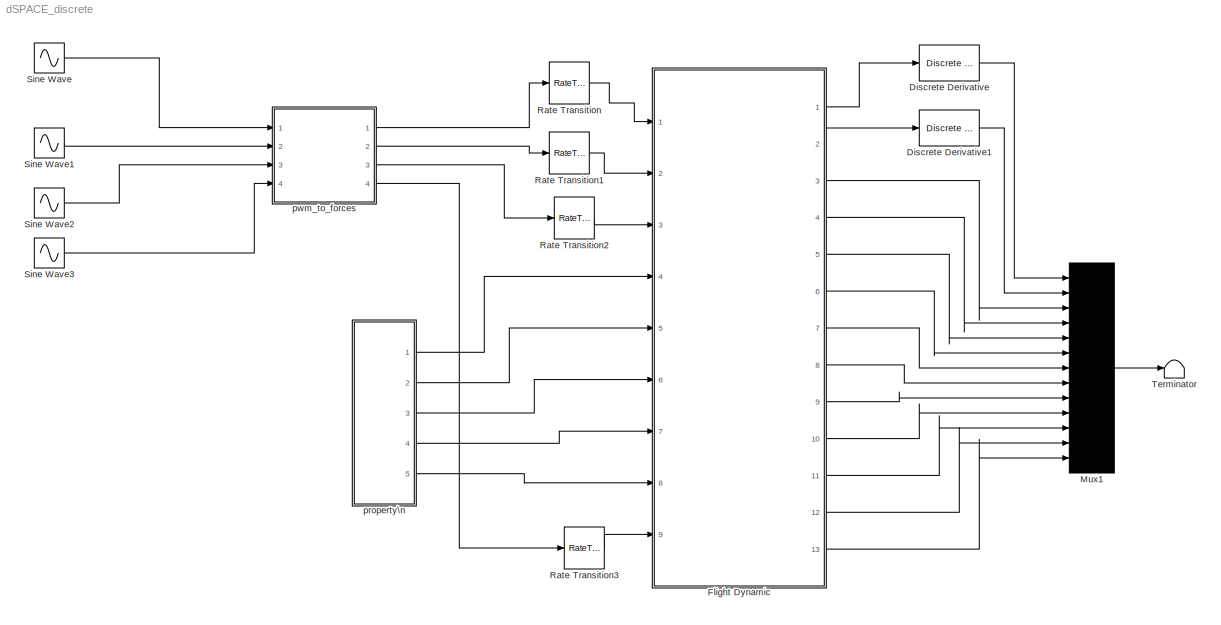
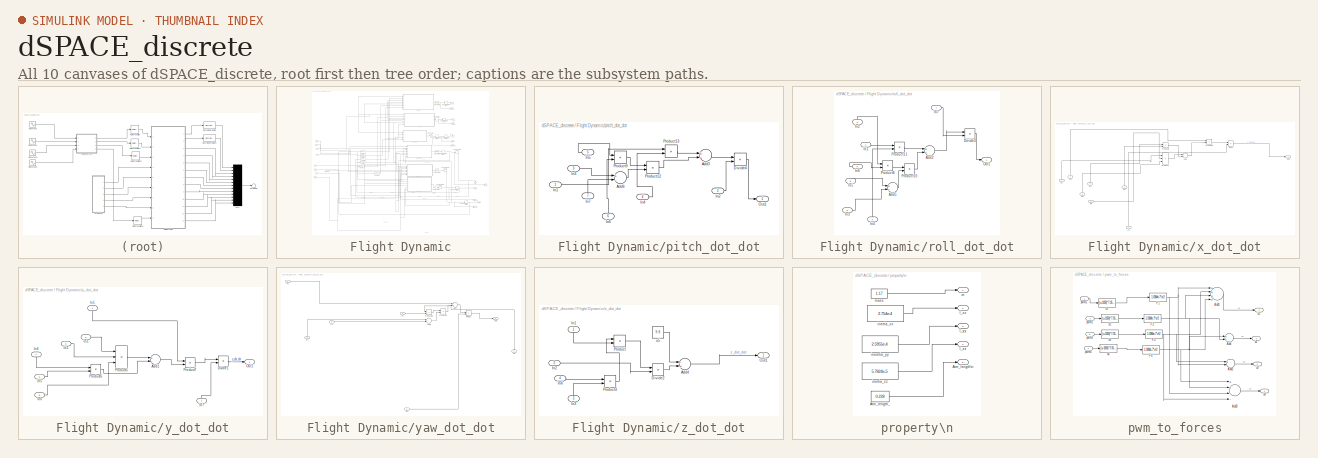
[diagram: thumbnail index - all 10 canvases of the model, root first then tree order]
MODEL dSPACE_discrete
KIND model
BLOCK [Reference] Discrete Derivative  REF=simulink/Discrete/Discrete Derivative
  DoSatur = off
  FunctionWithSeparateData = off
  ICPrevScaledInput = 0.0
  LockScale = off
  OutDataType = sfix(16)
  OutDataTypeStr = Inherit: Inherit via internal rule
  OutMax = []
  OutMin = []
  OutScaling = 2^-10
  OutputDataTypeScalingMode = Inherit via internal rule
  Ports = [1, 1]
  RTWMemSecDataConstants = Inherit from model
  RTWMemSecDataInternal = Inherit from model
  RTWMemSecDataParameters = Inherit from model
  RTWMemSecFuncExecute = Inherit from model
  RTWMemSecFuncInitTerm = Inherit from model
  RndMeth = Floor
  ShowPortLabels = FromPortIcon
  SourceBlock = simulink/Discrete/Discrete Derivative
  SourceType = Discrete Derivative
  SystemSampleTime = -1
  gainval = 1.0
BLOCK [Reference] Discrete Derivative1  REF=simulink/Discrete/Discrete Derivative
  DoSatur = off
  FunctionWithSeparateData = off
  ICPrevScaledInput = 0.0
  LockScale = off
  OutDataType = sfix(16)
  OutDataTypeStr = Inherit: Inherit via internal rule
  OutMax = []
  OutMin = []
  OutScaling = 2^-10
  OutputDataTypeScalingMode = Inherit via internal rule
  Ports = [1, 1]
  RTWMemSecDataConstants = Inherit from model
  RTWMemSecDataInternal = Inherit from model
  RTWMemSecDataParameters = Inherit from model
  RTWMemSecFuncExecute = Inherit from model
  RTWMemSecFuncInitTerm = Inherit from model
  RndMeth = Floor
  ShowPortLabels = FromPortIcon
  SourceBlock = simulink/Discrete/Discrete Derivative
  SourceType = Discrete Derivative
  SystemSampleTime = -1
  gainval = 1.0
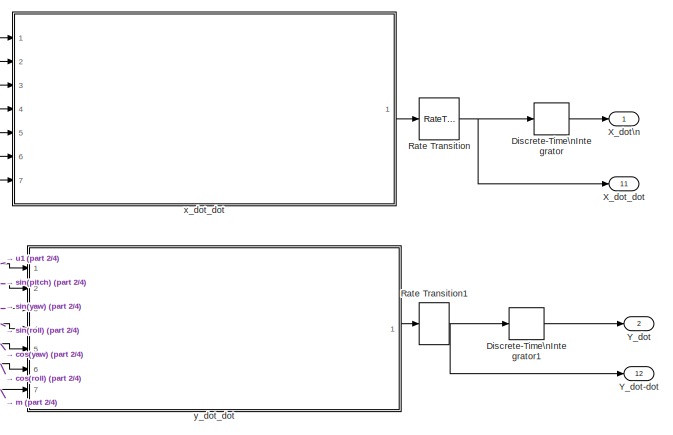
[diagram: Flight Dynamic - part 1/4, top center region]
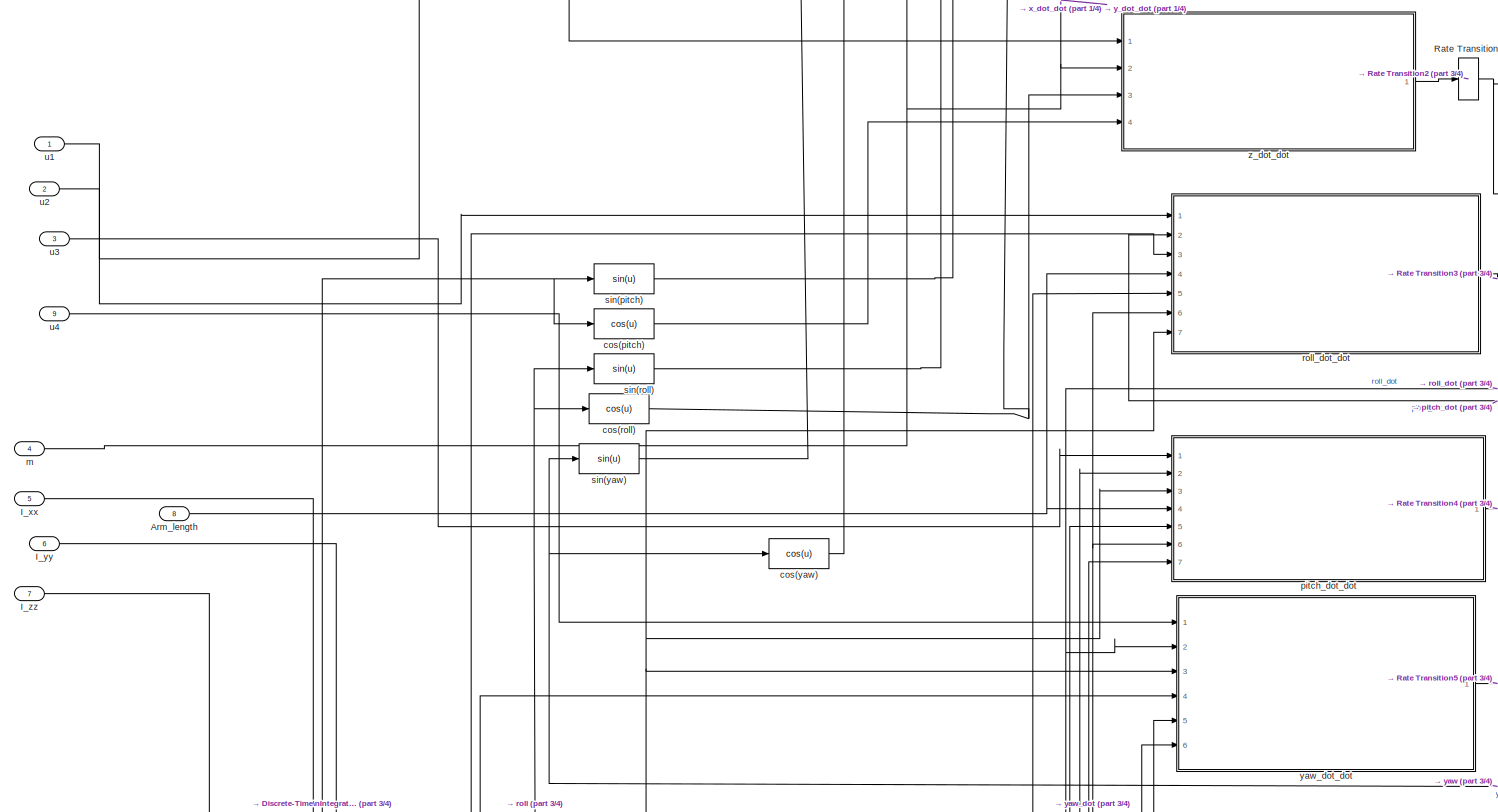
[diagram: Flight Dynamic - part 2/4, central region]
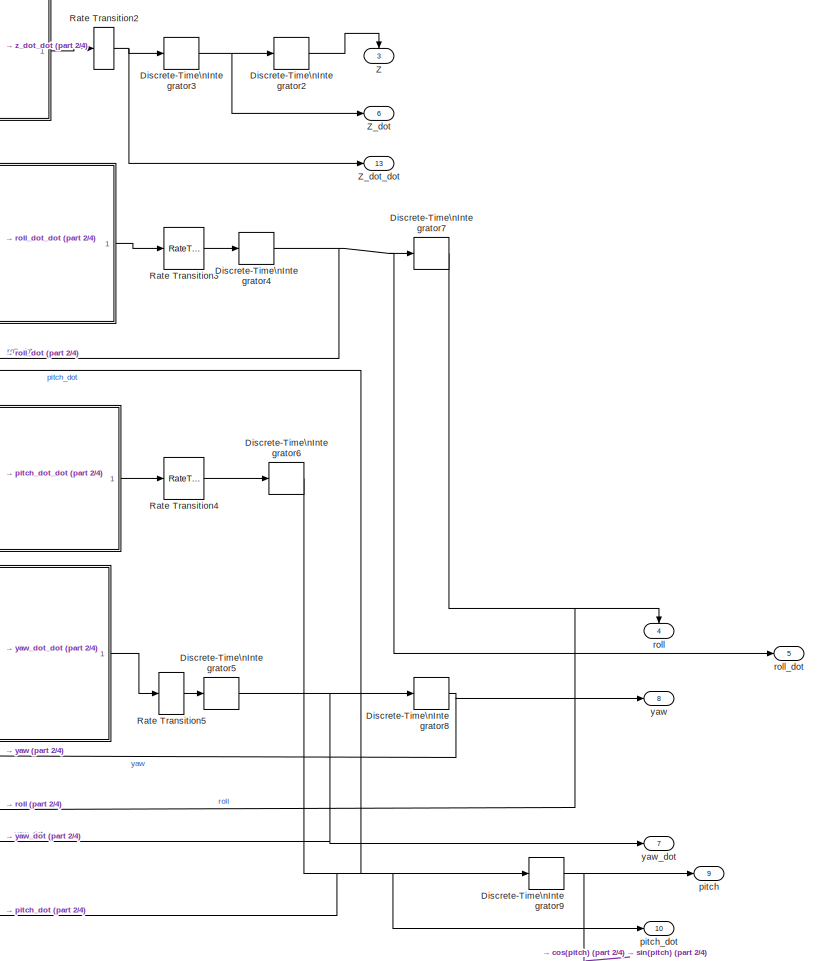
[diagram: Flight Dynamic - part 3/4, middle right region]
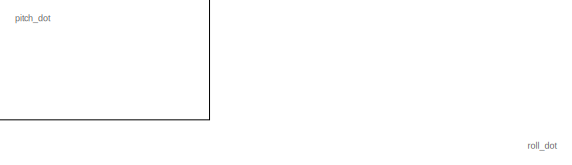
[diagram: Flight Dynamic - part 4/4, bottom center region]
BLOCK [SubSystem] Flight Dynamic
  FunctionWithSeparateData = off
  MaskHideContents = off
  MinAlgLoopOccurrences = off
  Opaque = off
  Ports = [9, 13]
  PropExecContextOutsideSubsystem = off
  RTWSystemCode = Auto
  RequestExecContextInheritance = off
BLOCK [Inport] Flight Dynamic/Arm_length
  IconDisplay = Port number
  OutDataType = sfix(16)
  OutScaling = 2^0
  Port = 8
BLOCK [DiscreteIntegrator] Flight Dynamic/Discrete-Time\nIntegrator
  ExternalReset = none
  ICPrevOutput = DiscIntNeverNeededParam
  ICPrevScaledInput = DiscIntNeverNeededParam
  InitialConditionSource = internal
  IntegratorMethod = Integration: Forward Euler
  OutDataType = sfix(16)
  OutScaling = 2^0
  Ports = [1, 1]
BLOCK [DiscreteIntegrator] Flight Dynamic/Discrete-Time\nIntegrator1
  ExternalReset = none
  ICPrevOutput = DiscIntNeverNeededParam
  ICPrevScaledInput = DiscIntNeverNeededParam
  InitialConditionSource = internal
  IntegratorMethod = Integration: Forward Euler
  OutDataType = sfix(16)
  OutScaling = 2^0
  Ports = [1, 1]
BLOCK [DiscreteIntegrator] Flight Dynamic/Discrete-Time\nIntegrator2
  ExternalReset = none
  ICPrevOutput = DiscIntNeverNeededParam
  ICPrevScaledInput = DiscIntNeverNeededParam
  InitialConditionSource = internal
  IntegratorMethod = Integration: Forward Euler
  OutDataType = sfix(16)
  OutScaling = 2^0
  Ports = [1, 1]
BLOCK [DiscreteIntegrator] Flight Dynamic/Discrete-Time\nIntegrator3
  ExternalReset = none
  ICPrevOutput = DiscIntNeverNeededParam
  ICPrevScaledInput = DiscIntNeverNeededParam
  InitialConditionSource = internal
  IntegratorMethod = Integration: Forward Euler
  OutDataType = sfix(16)
  OutScaling = 2^0
  Ports = [1, 1]
BLOCK [DiscreteIntegrator] Flight Dynamic/Discrete-Time\nIntegrator4
  ExternalReset = none
  ICPrevOutput = DiscIntNeverNeededParam
  ICPrevScaledInput = DiscIntNeverNeededParam
  InitialConditionSource = internal
  IntegratorMethod = Integration: Forward Euler
  OutDataType = sfix(16)
  OutScaling = 2^0
  Ports = [1, 1]
BLOCK [DiscreteIntegrator] Flight Dynamic/Discrete-Time\nIntegrator5
  ExternalReset = none
  ICPrevOutput = DiscIntNeverNeededParam
  ICPrevScaledInput = DiscIntNeverNeededParam
  InitialConditionSource = internal
  IntegratorMethod = Integration: Forward Euler
  OutDataType = sfix(16)
  OutScaling = 2^0
  Ports = [1, 1]
BLOCK [DiscreteIntegrator] Flight Dynamic/Discrete-Time\nIntegrator6
  ExternalReset = none
  ICPrevOutput = DiscIntNeverNeededParam
  ICPrevScaledInput = DiscIntNeverNeededParam
  InitialConditionSource = internal
  IntegratorMethod = Integration: Forward Euler
  OutDataType = sfix(16)
  OutScaling = 2^0
  Ports = [1, 1]
BLOCK [DiscreteIntegrator] Flight Dynamic/Discrete-Time\nIntegrator7
  ExternalReset = none
  ICPrevOutput = DiscIntNeverNeededParam
  ICPrevScaledInput = DiscIntNeverNeededParam
  InitialConditionSource = internal
  IntegratorMethod = Integration: Forward Euler
  OutDataType = sfix(16)
  OutScaling = 2^0
  Ports = [1, 1]
BLOCK [DiscreteIntegrator] Flight Dynamic/Discrete-Time\nIntegrator8
  ExternalReset = none
  ICPrevOutput = DiscIntNeverNeededParam
  ICPrevScaledInput = DiscIntNeverNeededParam
  InitialConditionSource = internal
  IntegratorMethod = Integration: Forward Euler
  OutDataType = sfix(16)
  OutScaling = 2^0
  Ports = [1, 1]
BLOCK [DiscreteIntegrator] Flight Dynamic/Discrete-Time\nIntegrator9
  ExternalReset = none
  ICPrevOutput = DiscIntNeverNeededParam
  ICPrevScaledInput = DiscIntNeverNeededParam
  InitialConditionSource = internal
  IntegratorMethod = Integration: Forward Euler
  OutDataType = sfix(16)
  OutScaling = 2^0
  Ports = [1, 1]
BLOCK [Inport] Flight Dynamic/I_xx
  IconDisplay = Port number
  OutDataType = sfix(16)
  OutScaling = 2^0
  Port = 5
BLOCK [Inport] Flight Dynamic/I_yy
  IconDisplay = Port number
  OutDataType = sfix(16)
  OutScaling = 2^0
  Port = 6
BLOCK [Inport] Flight Dynamic/I_zz
  IconDisplay = Port number
  OutDataType = sfix(16)
  OutScaling = 2^0
  Port = 7
BLOCK [RateTransition] Flight Dynamic/Rate Transition
BLOCK [RateTransition] Flight Dynamic/Rate Transition1
BLOCK [RateTransition] Flight Dynamic/Rate Transition2
BLOCK [RateTransition] Flight Dynamic/Rate Transition3
BLOCK [RateTransition] Flight Dynamic/Rate Transition4
BLOCK [RateTransition] Flight Dynamic/Rate Transition5
BLOCK [Outport] Flight Dynamic/X_dot\n
  IconDisplay = Port number
BLOCK [Outport] Flight Dynamic/X_dot_dot
  IconDisplay = Port number
  Port = 11
BLOCK [Outport] Flight Dynamic/Y_dot
  IconDisplay = Port number
  Port = 2
BLOCK [Outport] Flight Dynamic/Y_dot-dot
  IconDisplay = Port number
  Port = 12
BLOCK [Outport] Flight Dynamic/Z
  IconDisplay = Port number
  Port = 3
BLOCK [Outport] Flight Dynamic/Z_dot
  IconDisplay = Port number
  Port = 6
BLOCK [Outport] Flight Dynamic/Z_dot_dot
  IconDisplay = Port number
  Port = 13
BLOCK [Fcn] Flight Dynamic/cos(pitch)
  Expr = cos(u)
BLOCK [Fcn] Flight Dynamic/cos(roll)
  Expr = cos(u)
BLOCK [Fcn] Flight Dynamic/cos(yaw)
  Expr = cos(u)
BLOCK [Inport] Flight Dynamic/m
  IconDisplay = Port number
  OutDataType = sfix(16)
  OutScaling = 2^0
  Port = 4
BLOCK [Outport] Flight Dynamic/pitch
  IconDisplay = Port number
  Port = 9
BLOCK [Outport] Flight Dynamic/pitch_dot
  IconDisplay = Port number
  Port = 10
BLOCK [SubSystem] Flight Dynamic/pitch_dot_dot
  FunctionWithSeparateData = off
  MaskHideContents = off
  MinAlgLoopOccurrences = off
  Opaque = off
  Ports = [7, 1]
  PropExecContextOutsideSubsystem = off
  RTWSystemCode = Auto
  RequestExecContextInheritance = off
BLOCK [Sum] Flight Dynamic/pitch_dot_dot/Add3
  InputSameDT = off
  OutDataTypeMode = Inherit via internal rule
  OutDataTypeStr = Inherit: Inherit via internal rule
  Ports = [2, 1]
  SaturateOnIntegerOverflow = off
BLOCK [Sum] Flight Dynamic/pitch_dot_dot/Add6
  InputSameDT = off
  Inputs = +-
  OutDataTypeMode = Inherit via internal rule
  OutDataTypeStr = Inherit: Inherit via internal rule
  Ports = [2, 1]
  SaturateOnIntegerOverflow = off
BLOCK [Product] Flight Dynamic/pitch_dot_dot/Divide4
  InputSameDT = off
  Inputs = */
  OutDataTypeMode = Inherit via internal rule
  OutDataTypeStr = Inherit: Inherit via internal rule
  Ports = [2, 1]
  RndMeth = Floor
  SaturateOnIntegerOverflow = off
BLOCK [Inport] Flight Dynamic/pitch_dot_dot/In1
  IconDisplay = Port number
BLOCK [Inport] Flight Dynamic/pitch_dot_dot/In2
  IconDisplay = Port number
  Port = 2
BLOCK [Inport] Flight Dynamic/pitch_dot_dot/In3
  IconDisplay = Port number
  Port = 3
BLOCK [Inport] Flight Dynamic/pitch_dot_dot/In4
  IconDisplay = Port number
  Port = 4
BLOCK [Inport] Flight Dynamic/pitch_dot_dot/In5
  IconDisplay = Port number
  Port = 5
BLOCK [Inport] Flight Dynamic/pitch_dot_dot/In6
  IconDisplay = Port number
  Port = 6
BLOCK [Inport] Flight Dynamic/pitch_dot_dot/In7
  IconDisplay = Port number
  Port = 7
BLOCK [Outport] Flight Dynamic/pitch_dot_dot/Out1
  IconDisplay = Port number
BLOCK [Product] Flight Dynamic/pitch_dot_dot/Product12
  InputSameDT = off
  OutDataTypeMode = Inherit via internal rule
  OutDataTypeStr = Inherit: Inherit via internal rule
  Ports = [2, 1]
  RndMeth = Floor
  SaturateOnIntegerOverflow = off
BLOCK [Product] Flight Dynamic/pitch_dot_dot/Product13
  InputSameDT = off
  OutDataTypeMode = Inherit via internal rule
  OutDataTypeStr = Inherit: Inherit via internal rule
  Ports = [2, 1]
  RndMeth = Floor
  SaturateOnIntegerOverflow = off
BLOCK [Product] Flight Dynamic/pitch_dot_dot/Product9
  InputSameDT = off
  OutDataTypeMode = Inherit via internal rule
  OutDataTypeStr = Inherit: Inherit via internal rule
  Ports = [2, 1]
  RndMeth = Floor
  SaturateOnIntegerOverflow = off
BLOCK [Outport] Flight Dynamic/roll
  IconDisplay = Port number
  Port = 4
BLOCK [Outport] Flight Dynamic/roll_dot
  IconDisplay = Port number
  Port = 5
BLOCK [SubSystem] Flight Dynamic/roll_dot_dot
  FunctionWithSeparateData = off
  MaskHideContents = off
  MinAlgLoopOccurrences = off
  Opaque = off
  Ports = [7, 1]
  PropExecContextOutsideSubsystem = off
  RTWSystemCode = Auto
  RequestExecContextInheritance = off
BLOCK [Sum] Flight Dynamic/roll_dot_dot/Add2
  InputSameDT = off
  OutDataTypeMode = Inherit via internal rule
  OutDataTypeStr = Inherit: Inherit via internal rule
  Ports = [2, 1]
  SaturateOnIntegerOverflow = off
BLOCK [Sum] Flight Dynamic/roll_dot_dot/Add5
  InputSameDT = off
  Inputs = +-
  OutDataTypeMode = Inherit via internal rule
  OutDataTypeStr = Inherit: Inherit via internal rule
  Ports = [2, 1]
  SaturateOnIntegerOverflow = off
BLOCK [Product] Flight Dynamic/roll_dot_dot/Divide3
  InputSameDT = off
  Inputs = */
  OutDataTypeMode = Inherit via internal rule
  OutDataTypeStr = Inherit: Inherit via internal rule
  Ports = [2, 1]
  RndMeth = Floor
  SaturateOnIntegerOverflow = off
BLOCK [Inport] Flight Dynamic/roll_dot_dot/In1
  IconDisplay = Port number
BLOCK [Inport] Flight Dynamic/roll_dot_dot/In2
  IconDisplay = Port number
  Port = 2
BLOCK [Inport] Flight Dynamic/roll_dot_dot/In3
  IconDisplay = Port number
  Port = 3
BLOCK [Inport] Flight Dynamic/roll_dot_dot/In4
  IconDisplay = Port number
  Port = 4
BLOCK [Inport] Flight Dynamic/roll_dot_dot/In5
  IconDisplay = Port number
  Port = 5
BLOCK [Inport] Flight Dynamic/roll_dot_dot/In6
  IconDisplay = Port number
  Port = 6
BLOCK [Inport] Flight Dynamic/roll_dot_dot/In7
  IconDisplay = Port number
  Port = 7
BLOCK [Outport] Flight Dynamic/roll_dot_dot/Out1
  IconDisplay = Port number
BLOCK [Product] Flight Dynamic/roll_dot_dot/Product10
  InputSameDT = off
  OutDataTypeMode = Inherit via internal rule
  OutDataTypeStr = Inherit: Inherit via internal rule
  Ports = [2, 1]
  RndMeth = Floor
  SaturateOnIntegerOverflow = off
BLOCK [Product] Flight Dynamic/roll_dot_dot/Product11
  InputSameDT = off
  OutDataTypeMode = Inherit via internal rule
  OutDataTypeStr = Inherit: Inherit via internal rule
  Ports = [2, 1]
  RndMeth = Floor
  SaturateOnIntegerOverflow = off
BLOCK [Product] Flight Dynamic/roll_dot_dot/Product8
  InputSameDT = off
  OutDataTypeMode = Inherit via internal rule
  OutDataTypeStr = Inherit: Inherit via internal rule
  Ports = [2, 1]
  RndMeth = Floor
  SaturateOnIntegerOverflow = off
BLOCK [Fcn] Flight Dynamic/sin(pitch)
  Expr = sin(u)
BLOCK [Fcn] Flight Dynamic/sin(roll)
  Expr = sin(u)
BLOCK [Fcn] Flight Dynamic/sin(yaw)
  Expr = sin(u)
BLOCK [Inport] Flight Dynamic/u1
  IconDisplay = Port number
  OutDataType = sfix(16)
  OutScaling = 2^0
BLOCK [Inport] Flight Dynamic/u2
  IconDisplay = Port number
  OutDataType = sfix(16)
  OutScaling = 2^0
  Port = 2
BLOCK [Inport] Flight Dynamic/u3
  IconDisplay = Port number
  OutDataType = sfix(16)
  OutScaling = 2^0
  Port = 3
BLOCK [Inport] Flight Dynamic/u4
  IconDisplay = Port number
  OutDataType = sfix(16)
  OutScaling = 2^0
  Port = 9
BLOCK [SubSystem] Flight Dynamic/x_dot_dot
  FunctionWithSeparateData = off
  MaskHideContents = off
  MinAlgLoopOccurrences = off
  Opaque = off
  Ports = [7, 1]
  PropExecContextOutsideSubsystem = off
  RTWSystemCode = Auto
  RequestExecContextInheritance = off
BLOCK [Sum] Flight Dynamic/x_dot_dot/Add
  InputSameDT = off
  OutDataTypeMode = Inherit via internal rule
  OutDataTypeStr = Inherit: Inherit via internal rule
  Ports = [2, 1]
  SaturateOnIntegerOverflow = off
BLOCK [Product] Flight Dynamic/x_dot_dot/Divide
  InputSameDT = off
  Inputs = */
  OutDataTypeMode = Inherit via internal rule
  OutDataTypeStr = Inherit: Inherit via internal rule
  Ports = [2, 1]
  RndMeth = Floor
  SaturateOnIntegerOverflow = off
BLOCK [Inport] Flight Dynamic/x_dot_dot/In1
  IconDisplay = Port number
BLOCK [Inport] Flight Dynamic/x_dot_dot/In2
  IconDisplay = Port number
  Port = 2
BLOCK [Inport] Flight Dynamic/x_dot_dot/In3
  IconDisplay = Port number
  Port = 3
BLOCK [Inport] Flight Dynamic/x_dot_dot/In4
  IconDisplay = Port number
  Port = 4
BLOCK [Inport] Flight Dynamic/x_dot_dot/In5
  IconDisplay = Port number
  Port = 5
BLOCK [Inport] Flight Dynamic/x_dot_dot/In6
  IconDisplay = Port number
  Port = 6
BLOCK [Inport] Flight Dynamic/x_dot_dot/In7
  IconDisplay = Port number
  Port = 7
BLOCK [Outport] Flight Dynamic/x_dot_dot/Out1
  IconDisplay = Port number
BLOCK [Product] Flight Dynamic/x_dot_dot/Product1
  InputSameDT = off
  Inputs = 3
  OutDataTypeMode = Inherit via internal rule
  OutDataTypeStr = Inherit: Inherit via internal rule
  Ports = [3, 1]
  RndMeth = Floor
  SaturateOnIntegerOverflow = off
BLOCK [Product] Flight Dynamic/x_dot_dot/Product2
  InputSameDT = off
  OutDataTypeMode = Inherit via internal rule
  OutDataTypeStr = Inherit: Inherit via internal rule
  Ports = [2, 1]
  RndMeth = Floor
  SaturateOnIntegerOverflow = off
BLOCK [Product] Flight Dynamic/x_dot_dot/Product3
  InputSameDT = off
  OutDataTypeMode = Inherit via internal rule
  OutDataTypeStr = Inherit: Inherit via internal rule
  Ports = [2, 1]
  RndMeth = Floor
  SaturateOnIntegerOverflow = off
BLOCK [SubSystem] Flight Dynamic/y_dot_dot
  FunctionWithSeparateData = off
  MaskHideContents = off
  MinAlgLoopOccurrences = off
  Opaque = off
  Ports = [7, 1]
  PropExecContextOutsideSubsystem = off
  RTWSystemCode = Auto
  RequestExecContextInheritance = off
BLOCK [Sum] Flight Dynamic/y_dot_dot/Add1
  InputSameDT = off
  Inputs = +-
  OutDataTypeMode = Inherit via internal rule
  OutDataTypeStr = Inherit: Inherit via internal rule
  Ports = [2, 1]
  SaturateOnIntegerOverflow = off
BLOCK [Product] Flight Dynamic/y_dot_dot/Divide1
  InputSameDT = off
  Inputs = */
  OutDataTypeMode = Inherit via internal rule
  OutDataTypeStr = Inherit: Inherit via internal rule
  Ports = [2, 1]
  RndMeth = Floor
  SaturateOnIntegerOverflow = off
BLOCK [Inport] Flight Dynamic/y_dot_dot/In1
  IconDisplay = Port number
BLOCK [Inport] Flight Dynamic/y_dot_dot/In2
  IconDisplay = Port number
  Port = 2
BLOCK [Inport] Flight Dynamic/y_dot_dot/In3
  IconDisplay = Port number
  Port = 3
BLOCK [Inport] Flight Dynamic/y_dot_dot/In4
  IconDisplay = Port number
  Port = 4
BLOCK [Inport] Flight Dynamic/y_dot_dot/In5
  IconDisplay = Port number
  Port = 5
BLOCK [Inport] Flight Dynamic/y_dot_dot/In6
  IconDisplay = Port number
  Port = 6
BLOCK [Inport] Flight Dynamic/y_dot_dot/In7
  IconDisplay = Port number
  Port = 7
BLOCK [Outport] Flight Dynamic/y_dot_dot/Out1
  IconDisplay = Port number
BLOCK [Product] Flight Dynamic/y_dot_dot/Product5
  InputSameDT = off
  Inputs = 3
  OutDataTypeMode = Inherit via internal rule
  OutDataTypeStr = Inherit: Inherit via internal rule
  Ports = [3, 1]
  RndMeth = Floor
  SaturateOnIntegerOverflow = off
BLOCK [Product] Flight Dynamic/y_dot_dot/Product6
  InputSameDT = off
  OutDataTypeMode = Inherit via internal rule
  OutDataTypeStr = Inherit: Inherit via internal rule
  Ports = [2, 1]
  RndMeth = Floor
  SaturateOnIntegerOverflow = off
BLOCK [Product] Flight Dynamic/y_dot_dot/Product7
  InputSameDT = off
  OutDataTypeMode = Inherit via internal rule
  OutDataTypeStr = Inherit: Inherit via internal rule
  Ports = [2, 1]
  RndMeth = Floor
  SaturateOnIntegerOverflow = off
BLOCK [Outport] Flight Dynamic/yaw
  IconDisplay = Port number
  Port = 8
BLOCK [Outport] Flight Dynamic/yaw_dot
  IconDisplay = Port number
  Port = 7
BLOCK [SubSystem] Flight Dynamic/yaw_dot_dot
  FunctionWithSeparateData = off
  MaskHideContents = off
  MinAlgLoopOccurrences = off
  Opaque = off
  Ports = [6, 1]
  PropExecContextOutsideSubsystem = off
  RTWSystemCode = Auto
  RequestExecContextInheritance = off
BLOCK [Sum] Flight Dynamic/yaw_dot_dot/Add7
  InputSameDT = off
  OutDataTypeMode = Inherit via internal rule
  OutDataTypeStr = Inherit: Inherit via internal rule
  Ports = [2, 1]
  SaturateOnIntegerOverflow = off
BLOCK [Sum] Flight Dynamic/yaw_dot_dot/Add8
  InputSameDT = off
  Inputs = +-
  OutDataTypeMode = Inherit via internal rule
  OutDataTypeStr = Inherit: Inherit via internal rule
  Ports = [2, 1]
  SaturateOnIntegerOverflow = off
BLOCK [Product] Flight Dynamic/yaw_dot_dot/Divide5
  InputSameDT = off
  Inputs = */
  OutDataTypeMode = Inherit via internal rule
  OutDataTypeStr = Inherit: Inherit via internal rule
  Ports = [2, 1]
  RndMeth = Floor
  SaturateOnIntegerOverflow = off
BLOCK [Inport] Flight Dynamic/yaw_dot_dot/In1
  IconDisplay = Port number
BLOCK [Inport] Flight Dynamic/yaw_dot_dot/In2
  IconDisplay = Port number
  Port = 2
BLOCK [Inport] Flight Dynamic/yaw_dot_dot/In3
  IconDisplay = Port number
  Port = 3
BLOCK [Inport] Flight Dynamic/yaw_dot_dot/In4
  IconDisplay = Port number
  Port = 4
BLOCK [Inport] Flight Dynamic/yaw_dot_dot/In5
  IconDisplay = Port number
  Port = 5
BLOCK [Inport] Flight Dynamic/yaw_dot_dot/In6
  IconDisplay = Port number
  Port = 6
BLOCK [Outport] Flight Dynamic/yaw_dot_dot/Out1
  IconDisplay = Port number
BLOCK [Product] Flight Dynamic/yaw_dot_dot/Product14
  InputSameDT = off
  OutDataTypeMode = Inherit via internal rule
  OutDataTypeStr = Inherit: Inherit via internal rule
  Ports = [2, 1]
  RndMeth = Floor
  SaturateOnIntegerOverflow = off
BLOCK [Product] Flight Dynamic/yaw_dot_dot/Product15
  InputSameDT = off
  OutDataTypeMode = Inherit via internal rule
  OutDataTypeStr = Inherit: Inherit via internal rule
  Ports = [2, 1]
  RndMeth = Floor
  SaturateOnIntegerOverflow = off
BLOCK [SubSystem] Flight Dynamic/z_dot_dot
  FunctionWithSeparateData = off
  MaskHideContents = off
  MinAlgLoopOccurrences = off
  Opaque = off
  Ports = [4, 1]
  PropExecContextOutsideSubsystem = off
  RTWSystemCode = Auto
  RequestExecContextInheritance = off
BLOCK [Sum] Flight Dynamic/z_dot_dot/Add4
  InputSameDT = off
  Inputs = -+
  OutDataTypeMode = Inherit via internal rule
  OutDataTypeStr = Inherit: Inherit via internal rule
  Ports = [2, 1]
  SaturateOnIntegerOverflow = off
BLOCK [Product] Flight Dynamic/z_dot_dot/Divide2
  InputSameDT = off
  Inputs = */
  OutDataTypeMode = Inherit via internal rule
  OutDataTypeStr = Inherit: Inherit via internal rule
  Ports = [2, 1]
  RndMeth = Floor
  SaturateOnIntegerOverflow = off
BLOCK [Inport] Flight Dynamic/z_dot_dot/In1
  IconDisplay = Port number
BLOCK [Inport] Flight Dynamic/z_dot_dot/In2
  IconDisplay = Port number
  Port = 2
BLOCK [Inport] Flight Dynamic/z_dot_dot/In3
  IconDisplay = Port number
  Port = 3
BLOCK [Inport] Flight Dynamic/z_dot_dot/In4
  IconDisplay = Port number
  Port = 4
BLOCK [Outport] Flight Dynamic/z_dot_dot/Out1
  IconDisplay = Port number
BLOCK [Product] Flight Dynamic/z_dot_dot/Product
  InputSameDT = off
  OutDataTypeMode = Inherit via internal rule
  OutDataTypeStr = Inherit: Inherit via internal rule
  Ports = [2, 1]
  RndMeth = Floor
  SaturateOnIntegerOverflow = off
BLOCK [Product] Flight Dynamic/z_dot_dot/Product4
  InputSameDT = off
  OutDataTypeMode = Inherit via internal rule
  OutDataTypeStr = Inherit: Inherit via internal rule
  Ports = [2, 1]
  RndMeth = Floor
  SaturateOnIntegerOverflow = off
BLOCK [Constant] Flight Dynamic/z_dot_dot/u5
  Value = 9.8
BLOCK [Mux] Mux1
  DisplayOption = bar
  Inputs = 13
  Ports = [13, 1]
BLOCK [RateTransition] Rate Transition
BLOCK [RateTransition] Rate Transition1
BLOCK [RateTransition] Rate Transition2
BLOCK [RateTransition] Rate Transition3
BLOCK [Sin] Sine Wave
  Amplitude = 500
  Bias = 1500
  Ports = [0, 1]
  SampleTime = 0
BLOCK [Sin] Sine Wave1
  Amplitude = 500
  Bias = 1500
  Ports = [0, 1]
  SampleTime = 0
BLOCK [Sin] Sine Wave2
  Amplitude = 500
  Bias = 1500
  Ports = [0, 1]
  SampleTime = 0
BLOCK [Sin] Sine Wave3
  Amplitude = 500
  Bias = 1500
  Ports = [0, 1]
  SampleTime = 0
BLOCK [Terminator] Terminator
BLOCK [SubSystem] property\n
  FunctionWithSeparateData = off
  MaskHideContents = off
  MinAlgLoopOccurrences = off
  Opaque = off
  Ports = [0, 5]
  PropExecContextOutsideSubsystem = off
  RTWSystemCode = Auto
  RequestExecContextInheritance = off
BLOCK [Outport] property\n/Arm_length\n
  IconDisplay = Port number
  Port = 5
BLOCK [Constant] property\n/Arm_length_
  Value = 0.228
BLOCK [Outport] property\n/I_xx
  IconDisplay = Port number
  Port = 2
BLOCK [Outport] property\n/I_yy
  IconDisplay = Port number
  Port = 3
BLOCK [Outport] property\n/I_zz
  IconDisplay = Port number
  Port = 4
BLOCK [Constant] property\n/ineretia_yy
  Value = 2.5955e-4
BLOCK [Constant] property\n/inertia_xx
  Value = 2.754e-4
BLOCK [Constant] property\n/inertia_zz
  Value = 5.7824e-5
BLOCK [Outport] property\n/m
  IconDisplay = Port number
BLOCK [Constant] property\n/mass
  Value = 1.17
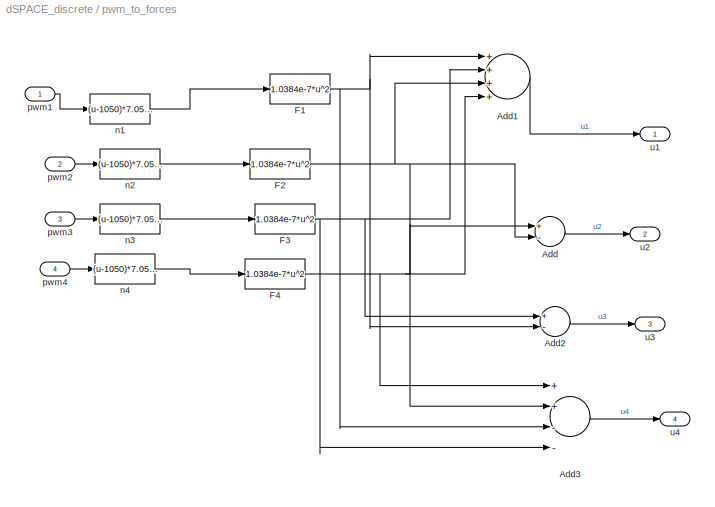
BLOCK [SubSystem] pwm_to_forces
  FunctionWithSeparateData = off
  MaskHideContents = off
  MinAlgLoopOccurrences = off
  Opaque = off
  Ports = [4, 4]
  PropExecContextOutsideSubsystem = off
  RTWSystemCode = Auto
  RequestExecContextInheritance = off
BLOCK [Sum] pwm_to_forces/Add
  InputSameDT = off
  Inputs = +-
  OutDataType = sfix(16)
  OutDataTypeMode = Inherit via internal rule
  OutDataTypeStr = Inherit: Inherit via internal rule
  OutScaling = 2^-10
  Ports = [2, 1]
  SaturateOnIntegerOverflow = off
BLOCK [Sum] pwm_to_forces/Add1
  InputSameDT = off
  Inputs = ++++
  OutDataType = sfix(16)
  OutDataTypeMode = Inherit via internal rule
  OutDataTypeStr = Inherit: Inherit via internal rule
  OutScaling = 2^-10
  Ports = [4, 1]
  SaturateOnIntegerOverflow = off
BLOCK [Sum] pwm_to_forces/Add2
  InputSameDT = off
  Inputs = +-
  OutDataType = sfix(16)
  OutDataTypeMode = Inherit via internal rule
  OutDataTypeStr = Inherit: Inherit via internal rule
  OutScaling = 2^-10
  Ports = [2, 1]
  SaturateOnIntegerOverflow = off
BLOCK [Sum] pwm_to_forces/Add3
  InputSameDT = off
  Inputs = ++--
  OutDataType = sfix(16)
  OutDataTypeMode = Inherit via internal rule
  OutDataTypeStr = Inherit: Inherit via internal rule
  OutScaling = 2^-10
  Ports = [4, 1]
  SaturateOnIntegerOverflow = off
BLOCK [Fcn] pwm_to_forces/F1
  Expr = 1.0384e-7*u^2
BLOCK [Fcn] pwm_to_forces/F2
  Expr = 1.0384e-7*u^2
BLOCK [Fcn] pwm_to_forces/F3
  Expr = 1.0384e-7*u^2
BLOCK [Fcn] pwm_to_forces/F4
  Expr = 1.0384e-7*u^2
BLOCK [Fcn] pwm_to_forces/n1
  Expr = (u-1050)*7.054+900
BLOCK [Fcn] pwm_to_forces/n2
  Expr = (u-1050)*7.054+900
BLOCK [Fcn] pwm_to_forces/n3
  Expr = (u-1050)*7.054+900
BLOCK [Fcn] pwm_to_forces/n4
  Expr = (u-1050)*7.054+900
BLOCK [Inport] pwm_to_forces/pwm1
  IconDisplay = Port number
BLOCK [Inport] pwm_to_forces/pwm2
  IconDisplay = Port number
  Port = 2
BLOCK [Inport] pwm_to_forces/pwm3
  IconDisplay = Port number
  Port = 3
BLOCK [Inport] pwm_to_forces/pwm4
  IconDisplay = Port number
  Port = 4
BLOCK [Outport] pwm_to_forces/u1
  IconDisplay = Port number
  OutDataType = sfix(16)
  OutScaling = 2^0
BLOCK [Outport] pwm_to_forces/u2
  IconDisplay = Port number
  OutDataType = sfix(16)
  OutScaling = 2^0
  Port = 2
BLOCK [Outport] pwm_to_forces/u3
  IconDisplay = Port number
  OutDataType = sfix(16)
  OutScaling = 2^0
  Port = 3
BLOCK [Outport] pwm_to_forces/u4
  IconDisplay = Port number
  OutDataType = sfix(16)
  OutScaling = 2^0
  Port = 4
ANNOTATION Flight Dynamic: pitch_dot
ANNOTATION Flight Dynamic: roll_dot
LINE Discrete Derivative1:1 -> Mux1:2
LINE Discrete Derivative:1 -> Mux1:1
NET Flight Dynamic/Arm_length:1 -> Flight Dynamic/pitch_dot_dot:4, Flight Dynamic/roll_dot_dot:4
LINE Flight Dynamic/Discrete-Time\nIntegrator1:1 -> Flight Dynamic/Y_dot:1
LINE Flight Dynamic/Discrete-Time\nIntegrator2:1 -> Flight Dynamic/Z:1
NET Flight Dynamic/Discrete-Time\nIntegrator3:1 -> Flight Dynamic/Discrete-Time\nIntegrator2:1, Flight Dynamic/Z_dot:1
NET Flight Dynamic/Discrete-Time\nIntegrator4:1 -> Flight Dynamic/Discrete-Time\nIntegrator7:1, Flight Dynamic/pitch_dot_dot:5, Flight Dynamic/roll_dot:1, Flight Dynamic/yaw_dot_dot:2
NET Flight Dynamic/Discrete-Time\nIntegrator5:1 -> Flight Dynamic/Discrete-Time\nIntegrator8:1, Flight Dynamic/pitch_dot_dot:6, Flight Dynamic/roll_dot_dot:6, Flight Dynamic/yaw_dot:1
NET Flight Dynamic/Discrete-Time\nIntegrator6:1 -> Flight Dynamic/Discrete-Time\nIntegrator9:1, Flight Dynamic/pitch_dot:1, Flight Dynamic/roll_dot_dot:2, Flight Dynamic/yaw_dot_dot:5
NET Flight Dynamic/Discrete-Time\nIntegrator7:1 -> Flight Dynamic/cos(roll):1, Flight Dynamic/roll:1, Flight Dynamic/sin(roll):1
NET Flight Dynamic/Discrete-Time\nIntegrator8:1 -> Flight Dynamic/cos(yaw):1, Flight Dynamic/sin(yaw):1, Flight Dynamic/yaw:1
NET Flight Dynamic/Discrete-Time\nIntegrator9:1 -> Flight Dynamic/cos(pitch):1, Flight Dynamic/pitch:1, Flight Dynamic/sin(pitch):1
LINE Flight Dynamic/Discrete-Time\nIntegrator:1 -> Flight Dynamic/X_dot\n:1
NET Flight Dynamic/I_xx:1 -> Flight Dynamic/pitch_dot_dot:2, Flight Dynamic/roll_dot_dot:3, Flight Dynamic/yaw_dot_dot:4
NET Flight Dynamic/I_yy:1 -> Flight Dynamic/pitch_dot_dot:3, Flight Dynamic/roll_dot_dot:7, Flight Dynamic/yaw_dot_dot:3
NET Flight Dynamic/I_zz:1 -> Flight Dynamic/pitch_dot_dot:7, Flight Dynamic/roll_dot_dot:5, Flight Dynamic/yaw_dot_dot:6
NET Flight Dynamic/Rate Transition1:1 -> Flight Dynamic/Discrete-Time\nIntegrator1:1, Flight Dynamic/Y_dot-dot:1
NET Flight Dynamic/Rate Transition2:1 -> Flight Dynamic/Discrete-Time\nIntegrator3:1, Flight Dynamic/Z_dot_dot:1
LINE Flight Dynamic/Rate Transition3:1 -> Flight Dynamic/Discrete-Time\nIntegrator4:1
LINE Flight Dynamic/Rate Transition4:1 -> Flight Dynamic/Discrete-Time\nIntegrator6:1
LINE Flight Dynamic/Rate Transition5:1 -> Flight Dynamic/Discrete-Time\nIntegrator5:1
NET Flight Dynamic/Rate Transition:1 -> Flight Dynamic/Discrete-Time\nIntegrator:1, Flight Dynamic/X_dot_dot:1
LINE Flight Dynamic/cos(pitch):1 -> Flight Dynamic/z_dot_dot:4
NET Flight Dynamic/cos(roll):1 -> Flight Dynamic/x_dot_dot:5, Flight Dynamic/y_dot_dot:6, Flight Dynamic/z_dot_dot:3
NET Flight Dynamic/cos(yaw):1 -> Flight Dynamic/x_dot_dot:6, Flight Dynamic/y_dot_dot:5
NET Flight Dynamic/m:1 -> Flight Dynamic/x_dot_dot:7, Flight Dynamic/y_dot_dot:7, Flight Dynamic/z_dot_dot:2
LINE Flight Dynamic/pitch_dot_dot/Add3:1 -> Flight Dynamic/pitch_dot_dot/Divide4:1
LINE Flight Dynamic/pitch_dot_dot/Add6:1 -> Flight Dynamic/pitch_dot_dot/Product12:2
LINE Flight Dynamic/pitch_dot_dot/Divide4:1 -> Flight Dynamic/pitch_dot_dot/Out1:1
LINE Flight Dynamic/pitch_dot_dot/In1:1 -> Flight Dynamic/pitch_dot_dot/Product13:1
LINE Flight Dynamic/pitch_dot_dot/In2:1 -> Flight Dynamic/pitch_dot_dot/Divide4:2
LINE Flight Dynamic/pitch_dot_dot/In3:1 -> Flight Dynamic/pitch_dot_dot/Add6:1
LINE Flight Dynamic/pitch_dot_dot/In4:1 -> Flight Dynamic/pitch_dot_dot/Product13:2
LINE Flight Dynamic/pitch_dot_dot/In5:1 -> Flight Dynamic/pitch_dot_dot/Product9:1
LINE Flight Dynamic/pitch_dot_dot/In6:1 -> Flight Dynamic/pitch_dot_dot/Product9:2
LINE Flight Dynamic/pitch_dot_dot/In7:1 -> Flight Dynamic/pitch_dot_dot/Add6:2
LINE Flight Dynamic/pitch_dot_dot/Product12:1 -> Flight Dynamic/pitch_dot_dot/Add3:2
LINE Flight Dynamic/pitch_dot_dot/Product13:1 -> Flight Dynamic/pitch_dot_dot/Add3:1
LINE Flight Dynamic/pitch_dot_dot/Product9:1 -> Flight Dynamic/pitch_dot_dot/Product12:1
LINE Flight Dynamic/pitch_dot_dot:1 -> Flight Dynamic/Rate Transition4:1
LINE Flight Dynamic/roll_dot_dot/Add2:1 -> Flight Dynamic/roll_dot_dot/Divide3:1
LINE Flight Dynamic/roll_dot_dot/Add5:1 -> Flight Dynamic/roll_dot_dot/Product10:2
LINE Flight Dynamic/roll_dot_dot/Divide3:1 -> Flight Dynamic/roll_dot_dot/Out1:1
LINE Flight Dynamic/roll_dot_dot/In1:1 -> Flight Dynamic/roll_dot_dot/Product11:1
LINE Flight Dynamic/roll_dot_dot/In2:1 -> Flight Dynamic/roll_dot_dot/Product8:1
LINE Flight Dynamic/roll_dot_dot/In3:1 -> Flight Dynamic/roll_dot_dot/Add5:2
LINE Flight Dynamic/roll_dot_dot/In4:1 -> Flight Dynamic/roll_dot_dot/Product11:2
LINE Flight Dynamic/roll_dot_dot/In5:1 -> Flight Dynamic/roll_dot_dot/Add5:1
LINE Flight Dynamic/roll_dot_dot/In6:1 -> Flight Dynamic/roll_dot_dot/Product8:2
LINE Flight Dynamic/roll_dot_dot/In7:1 -> Flight Dynamic/roll_dot_dot/Divide3:2
LINE Flight Dynamic/roll_dot_dot/Product10:1 -> Flight Dynamic/roll_dot_dot/Add2:2
LINE Flight Dynamic/roll_dot_dot/Product11:1 -> Flight Dynamic/roll_dot_dot/Add2:1
LINE Flight Dynamic/roll_dot_dot/Product8:1 -> Flight Dynamic/roll_dot_dot/Product10:1
LINE Flight Dynamic/roll_dot_dot:1 -> Flight Dynamic/Rate Transition3:1
NET Flight Dynamic/sin(pitch):1 -> Flight Dynamic/x_dot_dot:2, Flight Dynamic/y_dot_dot:2
NET Flight Dynamic/sin(roll):1 -> Flight Dynamic/x_dot_dot:4, Flight Dynamic/y_dot_dot:4
NET Flight Dynamic/sin(yaw):1 -> Flight Dynamic/x_dot_dot:3, Flight Dynamic/y_dot_dot:3
NET Flight Dynamic/u1:1 -> Flight Dynamic/x_dot_dot:1, Flight Dynamic/y_dot_dot:1, Flight Dynamic/z_dot_dot:1
LINE Flight Dynamic/u2:1 -> Flight Dynamic/roll_dot_dot:1
LINE Flight Dynamic/u3:1 -> Flight Dynamic/pitch_dot_dot:1
LINE Flight Dynamic/u4:1 -> Flight Dynamic/yaw_dot_dot:1
LINE Flight Dynamic/x_dot_dot/Add:1 -> Flight Dynamic/x_dot_dot/Product3:2
LINE Flight Dynamic/x_dot_dot/Divide:1 -> Flight Dynamic/x_dot_dot/Out1:1
LINE Flight Dynamic/x_dot_dot/In1:1 -> Flight Dynamic/x_dot_dot/Product3:1
LINE Flight Dynamic/x_dot_dot/In2:1 -> Flight Dynamic/x_dot_dot/Product1:1
LINE Flight Dynamic/x_dot_dot/In3:1 -> Flight Dynamic/x_dot_dot/Product2:1
LINE Flight Dynamic/x_dot_dot/In4:1 -> Flight Dynamic/x_dot_dot/Product2:2
LINE Flight Dynamic/x_dot_dot/In5:1 -> Flight Dynamic/x_dot_dot/Product1:3
LINE Flight Dynamic/x_dot_dot/In6:1 -> Flight Dynamic/x_dot_dot/Product1:2
LINE Flight Dynamic/x_dot_dot/In7:1 -> Flight Dynamic/x_dot_dot/Divide:2
LINE Flight Dynamic/x_dot_dot/Product1:1 -> Flight Dynamic/x_dot_dot/Add:1
LINE Flight Dynamic/x_dot_dot/Product2:1 -> Flight Dynamic/x_dot_dot/Add:2
LINE Flight Dynamic/x_dot_dot/Product3:1 -> Flight Dynamic/x_dot_dot/Divide:1
LINE Flight Dynamic/x_dot_dot:1 -> Flight Dynamic/Rate Transition:1
LINE Flight Dynamic/y_dot_dot/Add1:1 -> Flight Dynamic/y_dot_dot/Product7:2
LINE Flight Dynamic/y_dot_dot/Divide1:1 -> Flight Dynamic/y_dot_dot/Out1:1
LINE Flight Dynamic/y_dot_dot/In1:1 -> Flight Dynamic/y_dot_dot/Product7:1
LINE Flight Dynamic/y_dot_dot/In2:1 -> Flight Dynamic/y_dot_dot/Product5:2
LINE Flight Dynamic/y_dot_dot/In3:1 -> Flight Dynamic/y_dot_dot/Product5:1
LINE Flight Dynamic/y_dot_dot/In4:1 -> Flight Dynamic/y_dot_dot/Product6:1
LINE Flight Dynamic/y_dot_dot/In5:1 -> Flight Dynamic/y_dot_dot/Product6:2
LINE Flight Dynamic/y_dot_dot/In6:1 -> Flight Dynamic/y_dot_dot/Product5:3
LINE Flight Dynamic/y_dot_dot/In7:1 -> Flight Dynamic/y_dot_dot/Divide1:2
LINE Flight Dynamic/y_dot_dot/Product5:1 -> Flight Dynamic/y_dot_dot/Add1:1
LINE Flight Dynamic/y_dot_dot/Product6:1 -> Flight Dynamic/y_dot_dot/Add1:2
LINE Flight Dynamic/y_dot_dot/Product7:1 -> Flight Dynamic/y_dot_dot/Divide1:1
LINE Flight Dynamic/y_dot_dot:1 -> Flight Dynamic/Rate Transition1:1
LINE Flight Dynamic/yaw_dot_dot/Add7:1 -> Flight Dynamic/yaw_dot_dot/Divide5:1
LINE Flight Dynamic/yaw_dot_dot/Add8:1 -> Flight Dynamic/yaw_dot_dot/Product14:2
LINE Flight Dynamic/yaw_dot_dot/Divide5:1 -> Flight Dynamic/yaw_dot_dot/Out1:1
LINE Flight Dynamic/yaw_dot_dot/In1:1 -> Flight Dynamic/yaw_dot_dot/Add7:1
LINE Flight Dynamic/yaw_dot_dot/In2:1 -> Flight Dynamic/yaw_dot_dot/Product15:2
LINE Flight Dynamic/yaw_dot_dot/In3:1 -> Flight Dynamic/yaw_dot_dot/Add8:2
LINE Flight Dynamic/yaw_dot_dot/In4:1 -> Flight Dynamic/yaw_dot_dot/Add8:1
LINE Flight Dynamic/yaw_dot_dot/In5:1 -> Flight Dynamic/yaw_dot_dot/Product15:1
LINE Flight Dynamic/yaw_dot_dot/In6:1 -> Flight Dynamic/yaw_dot_dot/Divide5:2
LINE Flight Dynamic/yaw_dot_dot/Product14:1 -> Flight Dynamic/yaw_dot_dot/Add7:2
LINE Flight Dynamic/yaw_dot_dot/Product15:1 -> Flight Dynamic/yaw_dot_dot/Product14:1
LINE Flight Dynamic/yaw_dot_dot:1 -> Flight Dynamic/Rate Transition5:1
LINE Flight Dynamic/z_dot_dot/Add4:1 -> Flight Dynamic/z_dot_dot/Out1:1
LINE Flight Dynamic/z_dot_dot/Divide2:1 -> Flight Dynamic/z_dot_dot/Add4:2
LINE Flight Dynamic/z_dot_dot/In1:1 -> Flight Dynamic/z_dot_dot/Product:2
LINE Flight Dynamic/z_dot_dot/In2:1 -> Flight Dynamic/z_dot_dot/Divide2:2
LINE Flight Dynamic/z_dot_dot/In3:1 -> Flight Dynamic/z_dot_dot/Product4:2
LINE Flight Dynamic/z_dot_dot/In4:1 -> Flight Dynamic/z_dot_dot/Product4:1
LINE Flight Dynamic/z_dot_dot/Product4:1 -> Flight Dynamic/z_dot_dot/Product:1
LINE Flight Dynamic/z_dot_dot/Product:1 -> Flight Dynamic/z_dot_dot/Divide2:1
LINE Flight Dynamic/z_dot_dot/u5:1 -> Flight Dynamic/z_dot_dot/Add4:1
LINE Flight Dynamic/z_dot_dot:1 -> Flight Dynamic/Rate Transition2:1
LINE Flight Dynamic:1 -> Discrete Derivative:1
LINE Flight Dynamic:10 -> Mux1:10
LINE Flight Dynamic:11 -> Mux1:11
LINE Flight Dynamic:12 -> Mux1:12
LINE Flight Dynamic:13 -> Mux1:13
LINE Flight Dynamic:2 -> Discrete Derivative1:1
LINE Flight Dynamic:3 -> Mux1:3
LINE Flight Dynamic:4 -> Mux1:4
LINE Flight Dynamic:5 -> Mux1:5
LINE Flight Dynamic:6 -> Mux1:6
LINE Flight Dynamic:7 -> Mux1:7
LINE Flight Dynamic:8 -> Mux1:8
LINE Flight Dynamic:9 -> Mux1:9
LINE Mux1:1 -> Terminator:1
LINE Rate Transition1:1 -> Flight Dynamic:2
LINE Rate Transition2:1 -> Flight Dynamic:3
LINE Rate Transition3:1 -> Flight Dynamic:9
LINE Rate Transition:1 -> Flight Dynamic:1
LINE Sine Wave1:1 -> pwm_to_forces:2
LINE Sine Wave2:1 -> pwm_to_forces:3
LINE Sine Wave3:1 -> pwm_to_forces:4
LINE Sine Wave:1 -> pwm_to_forces:1
LINE property\n/Arm_length_:1 -> property\n/Arm_length\n:1
LINE property\n/ineretia_yy:1 -> property\n/I_yy:1
LINE property\n/inertia_xx:1 -> property\n/I_xx:1
LINE property\n/inertia_zz:1 -> property\n/I_zz:1
LINE property\n/mass:1 -> property\n/m:1
LINE property\n:1 -> Flight Dynamic:4
LINE property\n:2 -> Flight Dynamic:5
LINE property\n:3 -> Flight Dynamic:6
LINE property\n:4 -> Flight Dynamic:7
LINE property\n:5 -> Flight Dynamic:8
LINE pwm_to_forces/Add1:1 -> pwm_to_forces/u1:1
LINE pwm_to_forces/Add2:1 -> pwm_to_forces/u3:1
LINE pwm_to_forces/Add3:1 -> pwm_to_forces/u4:1
LINE pwm_to_forces/Add:1 -> pwm_to_forces/u2:1
NET pwm_to_forces/F1:1 -> pwm_to_forces/Add1:1, pwm_to_forces/Add2:2, pwm_to_forces/Add3:3
NET pwm_to_forces/F2:1 -> pwm_to_forces/Add1:3, pwm_to_forces/Add3:2, pwm_to_forces/Add:2
NET pwm_to_forces/F3:1 -> pwm_to_forces/Add1:2, pwm_to_forces/Add2:1, pwm_to_forces/Add3:4
NET pwm_to_forces/F4:1 -> pwm_to_forces/Add1:4, pwm_to_forces/Add3:1, pwm_to_forces/Add:1
LINE pwm_to_forces/n1:1 -> pwm_to_forces/F1:1
LINE pwm_to_forces/n2:1 -> pwm_to_forces/F2:1
LINE pwm_to_forces/n3:1 -> pwm_to_forces/F3:1
LINE pwm_to_forces/n4:1 -> pwm_to_forces/F4:1
LINE pwm_to_forces/pwm1:1 -> pwm_to_forces/n1:1
LINE pwm_to_forces/pwm2:1 -> pwm_to_forces/n2:1
LINE pwm_to_forces/pwm3:1 -> pwm_to_forces/n3:1
LINE pwm_to_forces/pwm4:1 -> pwm_to_forces/n4:1
LINE pwm_to_forces:1 -> Rate Transition:1
LINE pwm_to_forces:2 -> Rate Transition1:1
LINE pwm_to_forces:3 -> Rate Transition2:1
LINE pwm_to_forces:4 -> Rate Transition3:1
note: NET lines group one-source signal fan-out (src -> all destinations, sorted); 1:1 wires keep LINE
